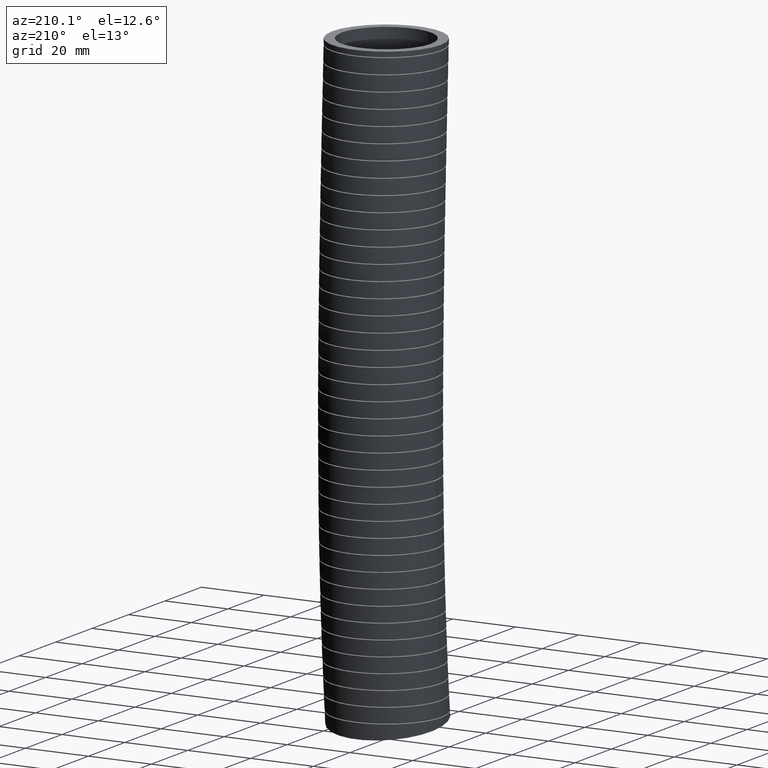
[diagram: clean part render]
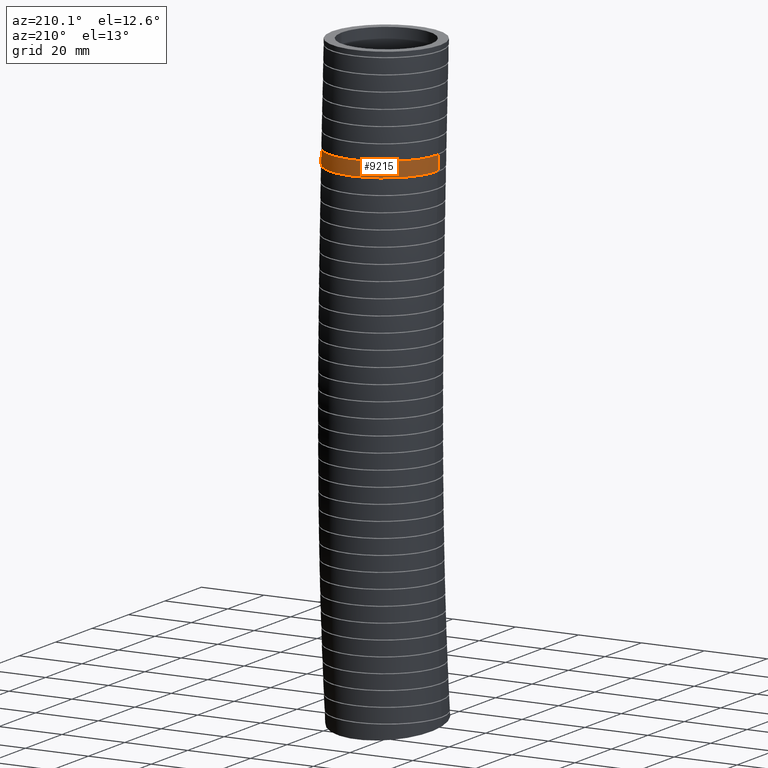
[diagram: same view with one face highlighted and labeled with its STEP entity id]
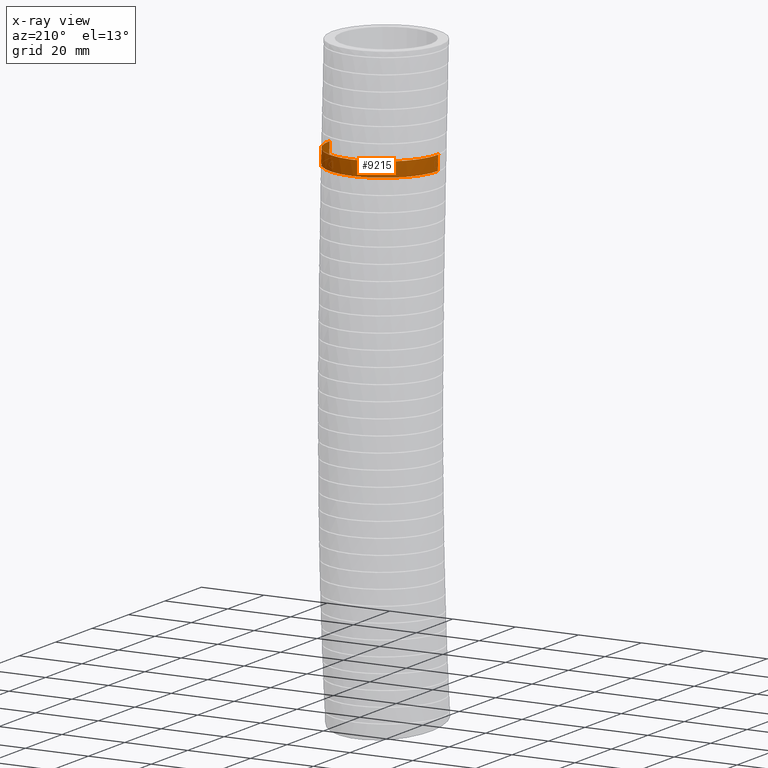
[diagram: x-ray of the same camera — body ghosted, the highlighted face saturated]
A machine part, auxiliary view. The second image highlights one B-rep face of the part: STEP entity #9215.
The next image is the same camera in x-ray: the body ghosted, the highlighted face saturated — about 0% of this face is hidden behind the body in this view.
In plain terms, the highlighted face is a freeform B-spline surface patch.
Its self-contained STEP definition (entity closure, byte-faithful):
#5315 = CARTESIAN_POINT ( 'NONE',  ( 0.6195158840119727700, 0.3407665831597436700, -1.388783917246879400 ) ) ;
#5316 = CARTESIAN_POINT ( 'NONE',  ( 0.6450297666689112100, 0.2793133476965747300, -1.388783917246879200 ) ) ;
#5317 = CARTESIAN_POINT ( 'NONE',  ( 0.6579723673577929600, 0.2369290597567781100, -1.388783917246877200 ) ) ;
#5318 = CARTESIAN_POINT ( 'NONE',  ( 0.6711432066495575100, 0.1711796300705252000, -1.388783917246877700 ) ) ;
#5319 = CARTESIAN_POINT ( 'NONE',  ( 0.6744721660543542300, 0.1489035720754975100, -1.388783917246879400 ) ) ;
#5320 = CARTESIAN_POINT ( 'NONE',  ( 0.6788900118513666600, 0.1043507331831411700, -1.388783917246878800 ) ) ;
#5321 = CARTESIAN_POINT ( 'NONE',  ( 0.6799999999999998300, 0.08198274476179155700, -1.388783917246963200 ) ) ;
#5322 = CARTESIAN_POINT ( 'NONE',  ( 0.6799999999999999400, 0.05952226633843366000, -1.388783917246963600 ) ) ;
#5323 = B_SPLINE_CURVE_WITH_KNOTS ( 'NONE', 3,
 ( #5322, #5321, #5320, #5319, #5318, #5317, #5316, #5315, #5383, #5382, #5381, #5380, #5379, #5378, #5377, #5376, #5375, #5374, #5373, #5372, #5371, #5370, #5369, #5368, #5367, #5366, #5365, #5364, #5363, #5362, #5361, #5360, #5359, #5358, #5357, #5356, #5355, #5354, #5353, #5352, #5351, #5350, #5349, #5348, #5347, #5346, #5345, #5344, #5343 ),
 .UNSPECIFIED., .F., .F.,
 ( 4, 2, 2, 2, 2, 2, 2, 2, 2, 2, 2, 2, 2, 2, 2, 2, 2, 2, 1, 2, 2, 2, 2, 2, 4 ),
 ( 0.0000000000000000000, 0.001705577706718386900, 0.003411155413436773900, 0.006822310826873545200, 0.008527888533591935400, 0.01023346624031032600, 0.01364462165374710200, 0.01535019936046548700, 0.01705577706718387800, 0.02046693248062064800, 0.02387808789405741800, 0.02558366560077580300, 0.02728924330749418400, 0.03070039872093095100, 0.03240597642764934300, 0.03411155413436772800, 0.03752270954780449100, 0.03922828725452286900, 0.04093386496124124700, 0.04263944266795963200, 0.04434502037467801700, 0.04775617578811476600, 0.04946175349483313700, 0.05116733120155150800, 0.05457848661498825000 ),
 .UNSPECIFIED. ) ;
#5343 = CARTESIAN_POINT ( 'NONE',  ( -0.6799999999999999400, 0.05952226633842700600, -1.388783917246878300 ) ) ;
#5344 = CARTESIAN_POINT ( 'NONE',  ( -0.6799999999999998300, 0.1040636816116658100, -1.388783917246878600 ) ) ;
#5345 = CARTESIAN_POINT ( 'NONE',  ( -0.6756657952899300900, 0.1481365416416682300, -1.388783917246877200 ) ) ;
#5346 = CARTESIAN_POINT ( 'NONE',  ( -0.6627007653388991000, 0.2135470619119101100, -1.388783917246877400 ) ) ;
#5347 = CARTESIAN_POINT ( 'NONE',  ( -0.6572641461623620600, 0.2353286039062181800, -1.388783917246877700 ) ) ;
#5348 = CARTESIAN_POINT ( 'NONE',  ( -0.6442729745938869900, 0.2781949146204562600, -1.388783917246877400 ) ) ;
#5349 = CARTESIAN_POINT ( 'NONE',  ( -0.6367699241534444700, 0.2991475493247117700, -1.388783917246878800 ) ) ;
#5350 = CARTESIAN_POINT ( 'NONE',  ( -0.6113279454122586600, 0.3606066111675881900, -1.388783917246879400 ) ) ;
#5351 = CARTESIAN_POINT ( 'NONE',  ( -0.5904841188803735500, 0.3997275171507729300, -1.388783917246877700 ) ) ;
#5352 = CARTESIAN_POINT ( 'NONE',  ( -0.5532364949593880900, 0.4555557548309150900, -1.388783917246877400 ) ) ;
#5353 = CARTESIAN_POINT ( 'NONE',  ( -0.5398405721421550800, 0.4736246413694929500, -1.388783917246878800 ) ) ;
#5354 = CARTESIAN_POINT ( 'NONE',  ( -0.5116267178463858000, 0.5080187996280946000, -1.388783917246878800 ) ) ;
#5355 = CARTESIAN_POINT ( 'NONE',  ( -0.4818615833697267300, 0.5408709454320574900, -1.388783917246877700 ) ) ;
#5356 = CARTESIAN_POINT ( 'NONE',  ( -0.4490359614996854400, 0.5706808879409639400, -1.388783917246878800 ) ) ;
#5357 = CARTESIAN_POINT ( 'NONE',  ( -0.4146568087345542400, 0.5989465807273477400, -1.388783917246879400 ) ) ;
#5358 = CARTESIAN_POINT ( 'NONE',  ( -0.3965841902484707500, 0.6123745019094817300, -1.388783917246878800 ) ) ;
#5359 = CARTESIAN_POINT ( 'NONE',  ( -0.3408351824228886800, 0.6496567866184976800, -1.388783917246878600 ) ) ;
#5360 = CARTESIAN_POINT ( 'NONE',  ( -0.3017471227027056500, 0.6705431845610992900, -1.388783917246879200 ) ) ;
#5361 = CARTESIAN_POINT ( 'NONE',  ( -0.2402999222732457900, 0.6960604329467151600, -1.388783917246878800 ) ) ;
#5362 = CARTESIAN_POINT ( 'NONE',  ( -0.2193449807927895800, 0.7035905281293880500, -1.388783917246878100 ) ) ;
#5363 = CARTESIAN_POINT ( 'NONE',  ( -0.1764596937705461000, 0.7166368054859410000, -1.388783917246878100 ) ) ;
#5364 = CARTESIAN_POINT ( 'NONE',  ( -0.1547174820288675400, 0.7220869439137853600, -1.388783917246878100 ) ) ;
#5365 = CARTESIAN_POINT ( 'NONE',  ( -0.08934847508229018500, 0.7351173343798286200, -1.388783917246878600 ) ) ;
#5366 = CARTESIAN_POINT ( 'NONE',  ( -0.04527809481863905000, 0.7395029418312341100, -1.388783917246878800 ) ) ;
#5367 = CARTESIAN_POINT ( 'NONE',  ( 0.02157047737818421100, 0.7395729765187188900, -1.388783917246878800 ) ) ;
#5368 = CARTESIAN_POINT ( 'NONE',  ( 0.04409273331599315700, 0.7384858607209230400, -1.388783917246879200 ) ) ;
#5369 = CARTESIAN_POINT ( 'NONE',  ( 0.08851747723099427600, 0.7341331937426678300, -1.388783917246878800 ) ) ;
#5370 = CARTESIAN_POINT ( 'NONE',  ( 0.1104847316466646100, 0.7308794914342201500, -1.388783917246878600 ) ) ;
#5371 = CARTESIAN_POINT ( 'NONE',  ( 0.1756676603570399600, 0.7179588802553525900, -1.388783917246878300 ) ) ;
#5372 = CARTESIAN_POINT ( 'NONE',  ( 0.2181715679004796200, 0.7051635322747911200, -1.388783917246877400 ) ) ;
#5373 = CARTESIAN_POINT ( 'NONE',  ( 0.3011961502863821400, 0.6708559037859520600, -1.388783917246877400 ) ) ;
#5374 = CARTESIAN_POINT ( 'NONE',  ( 0.3403440307288678700, 0.6499091766084124100, -1.388783917246878600 ) ) ;
#5375 = CARTESIAN_POINT ( 'NONE',  ( 0.3956319393118416000, 0.6130481331288352200, -1.388783917246878100 ) ) ;
#5376 = CARTESIAN_POINT ( 'NONE',  ( 0.4134865915461221100, 0.5998467498698300000, -1.388783917246878800 ) ) ;
#5377 = CARTESIAN_POINT ( 'NONE',  ( 0.4480205835320462700, 0.5715738574453145300, -1.388783917246879400 ) ) ;
#5378 = CARTESIAN_POINT ( 'NONE',  ( 0.4647418216660945100, 0.5564445173728036500, -1.388783917246879400 ) ) ;
#5379 = CARTESIAN_POINT ( 'NONE',  ( 0.5120474589807211300, 0.5092002826295297700, -1.388783917246879400 ) ) ;
#5380 = CARTESIAN_POINT ( 'NONE',  ( 0.5401667861289979300, 0.4749834252978553700, -1.388783917246879200 ) ) ;
#5381 = CARTESIAN_POINT ( 'NONE',  ( 0.5772669568374579900, 0.4196151602466519600, -1.388783917246878800 ) ) ;
#5382 = CARTESIAN_POINT ( 'NONE',  ( 0.5888159448868861600, 0.4004147284859120900, -1.388783917246879400 ) ) ;
#5383 = CARTESIAN_POINT ( 'NONE',  ( 0.6099873300176723600, 0.3608946009591002500, -1.388783917246878800 ) ) ;
#5636 = CARTESIAN_POINT ( 'NONE',  ( 0.1753299704374112800, 0.7097105397970480100, -1.208937299358837400 ) ) ;
#5637 = CARTESIAN_POINT ( 'NONE',  ( 0.1538002834523510600, 0.7150737365430930300, -1.208937299358837900 ) ) ;
#5638 = CARTESIAN_POINT ( 'NONE',  ( 0.1103555319558453700, 0.7236763663964997900, -1.208937299358837600 ) ) ;
#5639 = CARTESIAN_POINT ( 'NONE',  ( 0.08844045867624185400, 0.7269157511837101000, -1.208937299358837600 ) ) ;
#5640 = CARTESIAN_POINT ( 'NONE',  ( 0.04422117231784709900, 0.7312500237407882900, -1.208937299358837600 ) ) ;
#5641 = CARTESIAN_POINT ( 'NONE',  ( 0.02184344983103308000, 0.7323445840225234500, -1.208937299358838800 ) ) ;
#5642 = CARTESIAN_POINT ( 'NONE',  ( -0.04540780475953502800, 0.7322878492527584700, -1.208937299358838300 ) ) ;
#5643 = CARTESIAN_POINT ( 'NONE',  ( -0.08954303653690616500, 0.7278595292505437600, -1.208937299358837600 ) ) ;
#5644 = CARTESIAN_POINT ( 'NONE',  ( -0.1547333999445151300, 0.7148569583099642100, -1.208937299358837400 ) ) ;
#5645 = CARTESIAN_POINT ( 'NONE',  ( -0.1762935390122201100, 0.7094549969153455300, -1.208937299358838100 ) ) ;
#5646 = CARTESIAN_POINT ( 'NONE',  ( -0.2190648984603718300, 0.6964592824393268700, -1.208937299358838100 ) ) ;
#5647 = CARTESIAN_POINT ( 'NONE',  ( -0.2402612736601297300, 0.6888532445453579000, -1.208937299358837600 ) ) ;
#5648 = CARTESIAN_POINT ( 'NONE',  ( -0.3019224622399865300, 0.6632431338174547000, -1.208937299358837600 ) ) ;
#5649 = CARTESIAN_POINT ( 'NONE',  ( -0.3409618924623322200, 0.6423411324274948000, -1.208937299358837600 ) ) ;
#5650 = CARTESIAN_POINT ( 'NONE',  ( -0.3964259231492539600, 0.6052580660779804900, -1.208937299358837600 ) ) ;
#5651 = CARTESIAN_POINT ( 'NONE',  ( -0.4144836413934541700, 0.5918592899188992500, -1.208937299358837400 ) ) ;
#5652 = CARTESIAN_POINT ( 'NONE',  ( -0.4490545048371110700, 0.5634442380885167400, -1.208937299358837600 ) ) ;
#5653 = CARTESIAN_POINT ( 'NONE',  ( -0.4655165009205820500, 0.5484876172514818700, -1.208937299358837600 ) ) ;
#5654 = CARTESIAN_POINT ( 'NONE',  ( -0.5125010490184547200, 0.5014331193668533100, -1.208937299358837200 ) ) ;
#5655 = CARTESIAN_POINT ( 'NONE',  ( -0.5406451939933950600, 0.4671715606028731800, -1.208937299358836500 ) ) ;
#5656 = CARTESIAN_POINT ( 'NONE',  ( -0.5779461431747464600, 0.4113077102496052200, -1.208937299358836800 ) ) ;
#5657 = CARTESIAN_POINT ( 'NONE',  ( -0.5894748083593461800, 0.3920344792893171700, -1.208937299358837900 ) ) ;
#5658 = CARTESIAN_POINT ( 'NONE',  ( -0.6104037332896714600, 0.3528086977780697800, -1.208937299358837200 ) ) ;
#5659 = CARTESIAN_POINT ( 'NONE',  ( -0.6293222069353511200, 0.3127310652265378700, -1.208937299358837900 ) ) ;
#5660 = CARTESIAN_POINT ( 'NONE',  ( -0.6442673463642330000, 0.2709698858455794100, -1.208937299358837200 ) ) ;
#5661 = CARTESIAN_POINT ( 'NONE',  ( -0.6571920749239847900, 0.2283526354352873000, -1.208937299358837600 ) ) ;
#5662 = CARTESIAN_POINT ( 'NONE',  ( -0.6626639387496549000, 0.2064920968788046000, -1.208937299358837400 ) ) ;
#5663 = CARTESIAN_POINT ( 'NONE',  ( -0.6756991071837786800, 0.1407621200574122000, -1.208937299358837200 ) ) ;
#5664 = CARTESIAN_POINT ( 'NONE',  ( -0.6799999999999998300, 0.09666344738886584200, -1.208937299358837200 ) ) ;
#5665 = CARTESIAN_POINT ( 'NONE',  ( -0.6799999999999999400, 0.05229169479239927800, -1.208937299358837200 ) ) ;
#5666 = B_SPLINE_CURVE_WITH_KNOTS ( 'NONE', 3,
 ( #5665, #5664, #5663, #5662, #5661, #5660, #5659, #5658, #5657, #5656, #5655, #5654, #5653, #5652, #5651, #5650, #5649, #5648, #5647, #5646, #5645, #5644, #5643, #5642, #5641, #5640, #5639, #5638, #5637, #5636, #5714, #5713, #5712, #5711, #5710, #5709, #5708, #5707, #5706, #5705, #5704, #5703, #5702, #5701, #5700, #5699, #5698, #5697, #5696, #5695, #5694 ),
 .UNSPECIFIED., .F., .F.,
 ( 4, 2, 2, 1, 2, 2, 2, 2, 2, 2, 2, 2, 2, 2, 2, 2, 2, 2, 2, 2, 2, 2, 2, 2, 2, 4 ),
 ( 0.05400148755009746100, 0.05737581992842300000, 0.05906298611758576500, 0.06075015230674853100, 0.06243731849591130400, 0.06412448468507407600, 0.06749881706339960800, 0.06918598325256238000, 0.07087314944172515300, 0.07424748182005068400, 0.07593464800921345700, 0.07762181419837622900, 0.08099614657670177500, 0.08268331276586453300, 0.08437047895502730600, 0.08605764514419006500, 0.08774481133335283700, 0.09111914371167838300, 0.09280630990084115500, 0.09449347609000392800, 0.09786780846832948700, 0.09955497465749227300, 0.1012421408466550600, 0.1029293070358178300, 0.1046164732249806100, 0.1079908056033061600 ),
 .UNSPECIFIED. ) ;
#5668 = FACE_OUTER_BOUND ( 'NONE', #9213, .T. ) ;
#5694 = CARTESIAN_POINT ( 'NONE',  ( 0.6799999999999999400, 0.05229169479240514100, -1.208937299358910300 ) ) ;
#5695 = CARTESIAN_POINT ( 'NONE',  ( 0.6799999999999997200, 0.09721183431253439800, -1.208937299358910500 ) ) ;
#5696 = CARTESIAN_POINT ( 'NONE',  ( 0.6755925965351560200, 0.1416662840073554800, -1.208937299358837600 ) ) ;
#5697 = CARTESIAN_POINT ( 'NONE',  ( 0.6623961376043989700, 0.2076521372814111300, -1.208937299358837600 ) ) ;
#5698 = CARTESIAN_POINT ( 'NONE',  ( 0.6569164408509564600, 0.2293722928501549800, -1.208937299358837400 ) ) ;
#5699 = CARTESIAN_POINT ( 'NONE',  ( 0.6439570178750044800, 0.2718772090213983400, -1.208937299358837200 ) ) ;
#5700 = CARTESIAN_POINT ( 'NONE',  ( 0.6364647383357385800, 0.2927261523115256600, -1.208937299358837200 ) ) ;
#5701 = CARTESIAN_POINT ( 'NONE',  ( 0.6194753759542203100, 0.3336251120504886100, -1.208937299358837600 ) ) ;
#5702 = CARTESIAN_POINT ( 'NONE',  ( 0.6099783346159479700, 0.3536751450389247200, -1.208937299358837900 ) ) ;
#5703 = CARTESIAN_POINT ( 'NONE',  ( 0.5889417142127804100, 0.3929612467671723700, -1.208937299358837600 ) ) ;
#5704 = CARTESIAN_POINT ( 'NONE',  ( 0.5773318937825757700, 0.4122902884425583300, -1.208937299358837600 ) ) ;
#5705 = CARTESIAN_POINT ( 'NONE',  ( 0.5400617166242380800, 0.4679154262853537100, -1.208937299358837600 ) ) ;
#5706 = CARTESIAN_POINT ( 'NONE',  ( 0.5119062085720084100, 0.5021168919752118100, -1.208937299358837200 ) ) ;
#5707 = CARTESIAN_POINT ( 'NONE',  ( 0.4647920155799939400, 0.5491677088700700500, -1.208937299358837400 ) ) ;
#5708 = CARTESIAN_POINT ( 'NONE',  ( 0.4482680512140654900, 0.5641377469950710200, -1.208937299358837200 ) ) ;
#5709 = CARTESIAN_POINT ( 'NONE',  ( 0.4135228541268272100, 0.5925994709283248800, -1.208937299358837200 ) ) ;
#5710 = CARTESIAN_POINT ( 'NONE',  ( 0.3955846950104650000, 0.6058585415052517600, -1.208937299358837000 ) ) ;
#5711 = CARTESIAN_POINT ( 'NONE',  ( 0.3401724629381048200, 0.6427902719124664000, -1.208937299358837000 ) ) ;
#5712 = CARTESIAN_POINT ( 'NONE',  ( 0.3010978017880205400, 0.6636585734380907600, -1.208937299358837600 ) ) ;
#5713 = CARTESIAN_POINT ( 'NONE',  ( 0.2392349106672198600, 0.6892417784016287000, -1.208937299358837600 ) ) ;
#5714 = CARTESIAN_POINT ( 'NONE',  ( 0.2179965291750900200, 0.6968193944699948600, -1.208937299358837600 ) ) ;
#5715 = CARTESIAN_POINT ( 'NONE',  ( 0.6800000000000000500, -1.264559801960247100, -6.143882858543539900 ) ) ;
#5716 = CARTESIAN_POINT ( 'NONE',  ( 0.6799999999999998300, -1.194865599480906100, -3.721164621865159700 ) ) ;
#5717 = CARTESIAN_POINT ( 'NONE',  ( 0.6800000000000000500, -1.297703424955836600, -1.403800845789877400 ) ) ;
#5718 = CARTESIAN_POINT ( 'NONE',  ( 0.6800000000000000500, -1.360000000000000100, 0.0000000000000000000 ) ) ;
#5719 = CARTESIAN_POINT ( 'NONE',  ( 0.6799999999999998300, -0.03000000000000002700, -7.570000000000000300 ) ) ;
#5720 = CARTESIAN_POINT ( 'NONE',  ( 0.6799999999999998300, -0.01268304244353373300, -7.380027536167250300 ) ) ;
#5721 = CARTESIAN_POINT ( 'NONE',  ( 0.6799999999999998300, 0.08815119140610085100, -6.273844317744462300 ) ) ;
#5722 = CARTESIAN_POINT ( 'NONE',  ( 0.6799999999999998300, 0.1669887239008314700, -3.753425867331408000 ) ) ;
#5723 = CARTESIAN_POINT ( 'NONE',  ( 0.6799999999999999400, 0.06299611430032937800, -1.415971326882179200 ) ) ;
#5724 = CARTESIAN_POINT ( 'NONE',  ( 0.6799999999999999400, 0.0000000000000000000, 0.0000000000000000000 ) ) ;
#5727 =( BOUNDED_SURFACE ( )  B_SPLINE_SURFACE ( 3, 3, ( 
 ( #5724, #5723, #5722, #5721, #5720, #5719 ),
 ( #5718, #5717, #5716, #5715, #5760, #5759 ),
 ( #5758, #5757, #5756, #5755, #5754, #5753 ),
 ( #5752, #5751, #5750, #5749, #5748, #5747 ),
 ( #5746, #5745, #5744, #5743, #5742, #5741 ),
 ( #5740, #5739, #5738, #5737, #5736, #5735 ),
 ( #5734, #5733, #5732, #5731, #5730, #5729 ) ),
 .UNSPECIFIED., .F., .F., .F. ) 
 B_SPLINE_SURFACE_WITH_KNOTS ( ( 4, 3, 4 ),
 ( 4, 1, 1, 4 ),
 ( 0.0000000000000000000, 0.5000000000000000000, 1.000000000000000000 ),
 ( 0.0000000000000000000, 0.5599999999999998300, 0.9244357691435686200, 1.000000000000000000 ),
 .UNSPECIFIED. ) 
 GEOMETRIC_REPRESENTATION_ITEM ( )  RATIONAL_B_SPLINE_SURFACE ( (
 ( 1.000000000000000000, 1.000000000000000000, 0.9999999999999998900, 1.000000000000000000, 1.000000000000000000, 1.000000000000000000),
 ( 0.3333333333333333100, 0.3333333333333333100, 0.3333333333333333100, 0.3333333333333333100, 0.3333333333333333100, 0.3333333333333333100),
 ( 0.3333333333333333100, 0.3333333333333333100, 0.3333333333333333100, 0.3333333333333333100, 0.3333333333333333100, 0.3333333333333333100),
 ( 1.000000000000000000, 1.000000000000000000, 0.9999999999999998900, 1.000000000000000000, 1.000000000000000000, 1.000000000000000000),
 ( 0.3333333333333333100, 0.3333333333333333100, 0.3333333333333333100, 0.3333333333333333100, 0.3333333333333333100, 0.3333333333333333100),
 ( 0.3333333333333333100, 0.3333333333333333100, 0.3333333333333333100, 0.3333333333333333100, 0.3333333333333333100, 0.3333333333333333100),
 ( 1.000000000000000000, 1.000000000000000000, 0.9999999999999998900, 1.000000000000000000, 1.000000000000000000, 1.000000000000000000) ) ) 
 REPRESENTATION_ITEM ( '' )  SURFACE ( )  );
#5729 = CARTESIAN_POINT ( 'NONE',  ( 0.6799999999999998300, -0.03000000000000002700, -7.570000000000000300 ) ) ;
#5730 = CARTESIAN_POINT ( 'NONE',  ( 0.6799999999999998300, -0.01268304244353373300, -7.380027536167250300 ) ) ;
#5731 = CARTESIAN_POINT ( 'NONE',  ( 0.6799999999999998300, 0.08815119140610085100, -6.273844317744462300 ) ) ;
#5732 = CARTESIAN_POINT ( 'NONE',  ( 0.6799999999999998300, 0.1669887239008314700, -3.753425867331408000 ) ) ;
#5733 = CARTESIAN_POINT ( 'NONE',  ( 0.6799999999999999400, 0.06299611430032937800, -1.415971326882179200 ) ) ;
#5734 = CARTESIAN_POINT ( 'NONE',  ( 0.6799999999999999400, 0.0000000000000000000, 0.0000000000000000000 ) ) ;
#5735 = CARTESIAN_POINT ( 'NONE',  ( 0.6799999999999998300, 1.317559051196987700, -7.753533657777190100 ) ) ;
#5736 = CARTESIAN_POINT ( 'NONE',  ( 0.6799999999999998300, 1.335631108747101300, -7.555709326537000300 ) ) ;
#5737 = CARTESIAN_POINT ( 'NONE',  ( 0.6800000000000000500, 1.440862184772448300, -6.403805776945382000 ) ) ;
#5738 = CARTESIAN_POINT ( 'NONE',  ( 0.6799999999999998300, 1.528843047282568500, -3.785687112797655500 ) ) ;
#5739 = CARTESIAN_POINT ( 'NONE',  ( 0.6800000000000000500, 1.423695653556495700, -1.428141807974481600 ) ) ;
#5740 = CARTESIAN_POINT ( 'NONE',  ( 0.6800000000000000500, 1.360000000000000100, 0.0000000000000000000 ) ) ;
#5741 = CARTESIAN_POINT ( 'NONE',  ( -0.6799999999999997200, 1.317559051196987700, -7.753533657777190100 ) ) ;
#5742 = CARTESIAN_POINT ( 'NONE',  ( -0.6799999999999998300, 1.335631108747101300, -7.555709326537000300 ) ) ;
#5743 = CARTESIAN_POINT ( 'NONE',  ( -0.6799999999999998300, 1.440862184772448300, -6.403805776945382000 ) ) ;
#5744 = CARTESIAN_POINT ( 'NONE',  ( -0.6799999999999993800, 1.528843047282568500, -3.785687112797655500 ) ) ;
#5745 = CARTESIAN_POINT ( 'NONE',  ( -0.6799999999999997200, 1.423695653556495700, -1.428141807974481600 ) ) ;
#5746 = CARTESIAN_POINT ( 'NONE',  ( -0.6799999999999998300, 1.360000000000000100, 0.0000000000000000000 ) ) ;
#5747 = CARTESIAN_POINT ( 'NONE',  ( -0.6799999999999998300, -0.02999999999999994300, -7.570000000000000300 ) ) ;
#5748 = CARTESIAN_POINT ( 'NONE',  ( -0.6799999999999998300, -0.01268304244353365600, -7.380027536167250300 ) ) ;
#5749 = CARTESIAN_POINT ( 'NONE',  ( -0.6799999999999998300, 0.08815119140610093400, -6.273844317744462300 ) ) ;
#5750 = CARTESIAN_POINT ( 'NONE',  ( -0.6799999999999998300, 0.1669887239008315800, -3.753425867331408000 ) ) ;
#5751 = CARTESIAN_POINT ( 'NONE',  ( -0.6799999999999999400, 0.06299611430032946200, -1.415971326882179200 ) ) ;
#5752 = CARTESIAN_POINT ( 'NONE',  ( -0.6799999999999999400, 8.327598234202001900E-017, 0.0000000000000000000 ) ) ;
#5753 = CARTESIAN_POINT ( 'NONE',  ( -0.6800000000000000500, -1.377559051196987500, -7.386466342222807800 ) ) ;
#5754 = CARTESIAN_POINT ( 'NONE',  ( -0.6800000000000000500, -1.360997193634168900, -7.204345745797499300 ) ) ;
#5755 = CARTESIAN_POINT ( 'NONE',  ( -0.6800000000000000500, -1.264559801960247100, -6.143882858543539900 ) ) ;
#5756 = CARTESIAN_POINT ( 'NONE',  ( -0.6799999999999998300, -1.194865599480906100, -3.721164621865159700 ) ) ;
#5757 = CARTESIAN_POINT ( 'NONE',  ( -0.6800000000000000500, -1.297703424955836600, -1.403800845789877400 ) ) ;
#5758 = CARTESIAN_POINT ( 'NONE',  ( -0.6800000000000000500, -1.360000000000000100, 0.0000000000000000000 ) ) ;
#5759 = CARTESIAN_POINT ( 'NONE',  ( 0.6799999999999998300, -1.377559051196987500, -7.386466342222807800 ) ) ;
#5760 = CARTESIAN_POINT ( 'NONE',  ( 0.6799999999999998300, -1.360997193634168900, -7.204345745797499300 ) ) ;
#9187 = ORIENTED_EDGE ( 'NONE', *, *, #9191, .T. ) ;
#9191 = EDGE_CURVE ( 'NONE', #9845, #9842, #5323, .T. ) ;
#9209 = ORIENTED_EDGE ( 'NONE', *, *, #9211, .T. ) ;
#9211 = EDGE_CURVE ( 'NONE', #9839, #9838, #5666, .T. ) ;
#9212 = ORIENTED_EDGE ( 'NONE', *, *, #9841, .F. ) ;
#9213 = EDGE_LOOP ( 'NONE', ( #9212, #9209, #9214, #9187 ) ) ;
#9214 = ORIENTED_EDGE ( 'NONE', *, *, #9847, .T. ) ;
#9215 = ADVANCED_FACE ( 'NONE', ( #5668 ), #5727, .T. ) ;
#9838 = VERTEX_POINT ( 'NONE', #13756 ) ;
#9839 = VERTEX_POINT ( 'NONE', #13602 ) ;
#9841 = EDGE_CURVE ( 'NONE', #9839, #9842, #13794, .T. ) ;
#9842 = VERTEX_POINT ( 'NONE', #13792 ) ;
#9845 = VERTEX_POINT ( 'NONE', #13785 ) ;
#9847 = EDGE_CURVE ( 'NONE', #9838, #9845, #13831, .T. ) ;
#13602 = CARTESIAN_POINT ( 'NONE',  ( -0.6799999999999999400, 0.05229169479239927800, -1.208937299358837200 ) ) ;
#13756 = CARTESIAN_POINT ( 'NONE',  ( 0.6799999999999999400, 0.05229169479240514100, -1.208937299358910300 ) ) ;
#13785 = CARTESIAN_POINT ( 'NONE',  ( 0.6799999999999999400, 0.05952226633843366000, -1.388783917246963600 ) ) ;
#13786 = CARTESIAN_POINT ( 'NONE',  ( -0.6799999999999999400, 0.05952226633842700600, -1.388783917246878300 ) ) ;
#13787 = CARTESIAN_POINT ( 'NONE',  ( -0.6799999999999999400, 0.05714848559444325000, -1.328836586366515500 ) ) ;
#13788 = CARTESIAN_POINT ( 'NONE',  ( -0.6799999999999999400, 0.05473665230056933000, -1.268887644174903700 ) ) ;
#13789 = CARTESIAN_POINT ( 'NONE',  ( -0.6799999999999999400, 0.05229169479239927800, -1.208937299358837200 ) ) ;
#13792 = CARTESIAN_POINT ( 'NONE',  ( -0.6799999999999999400, 0.05952226633842700600, -1.388783917246878300 ) ) ;
#13794 = B_SPLINE_CURVE_WITH_KNOTS ( 'NONE', 3,
 ( #13789, #13788, #13787, #13786 ),
 .UNSPECIFIED., .F., .F.,
 ( 4, 4 ),
 ( 0.1593818457018952000, 0.1830952301046067700 ),
 .UNSPECIFIED. ) ;
#13831 = B_SPLINE_CURVE_WITH_KNOTS ( 'NONE', 3,
 ( #13964, #13963, #13961, #13959 ),
 .UNSPECIFIED., .F., .F.,
 ( 4, 4 ),
 ( 0.1593818457019048600, 0.1830952301046180300 ),
 .UNSPECIFIED. ) ;
#13959 = CARTESIAN_POINT ( 'NONE',  ( 0.6799999999999999400, 0.05952226633843366000, -1.388783917246963600 ) ) ;
#13961 = CARTESIAN_POINT ( 'NONE',  ( 0.6799999999999997200, 0.05714848559444642200, -1.328836586366596700 ) ) ;
#13963 = CARTESIAN_POINT ( 'NONE',  ( 0.6799999999999998300, 0.05473665230057236900, -1.268887644174981200 ) ) ;
#13964 = CARTESIAN_POINT ( 'NONE',  ( 0.6799999999999999400, 0.05229169479240514100, -1.208937299358910300 ) ) ;